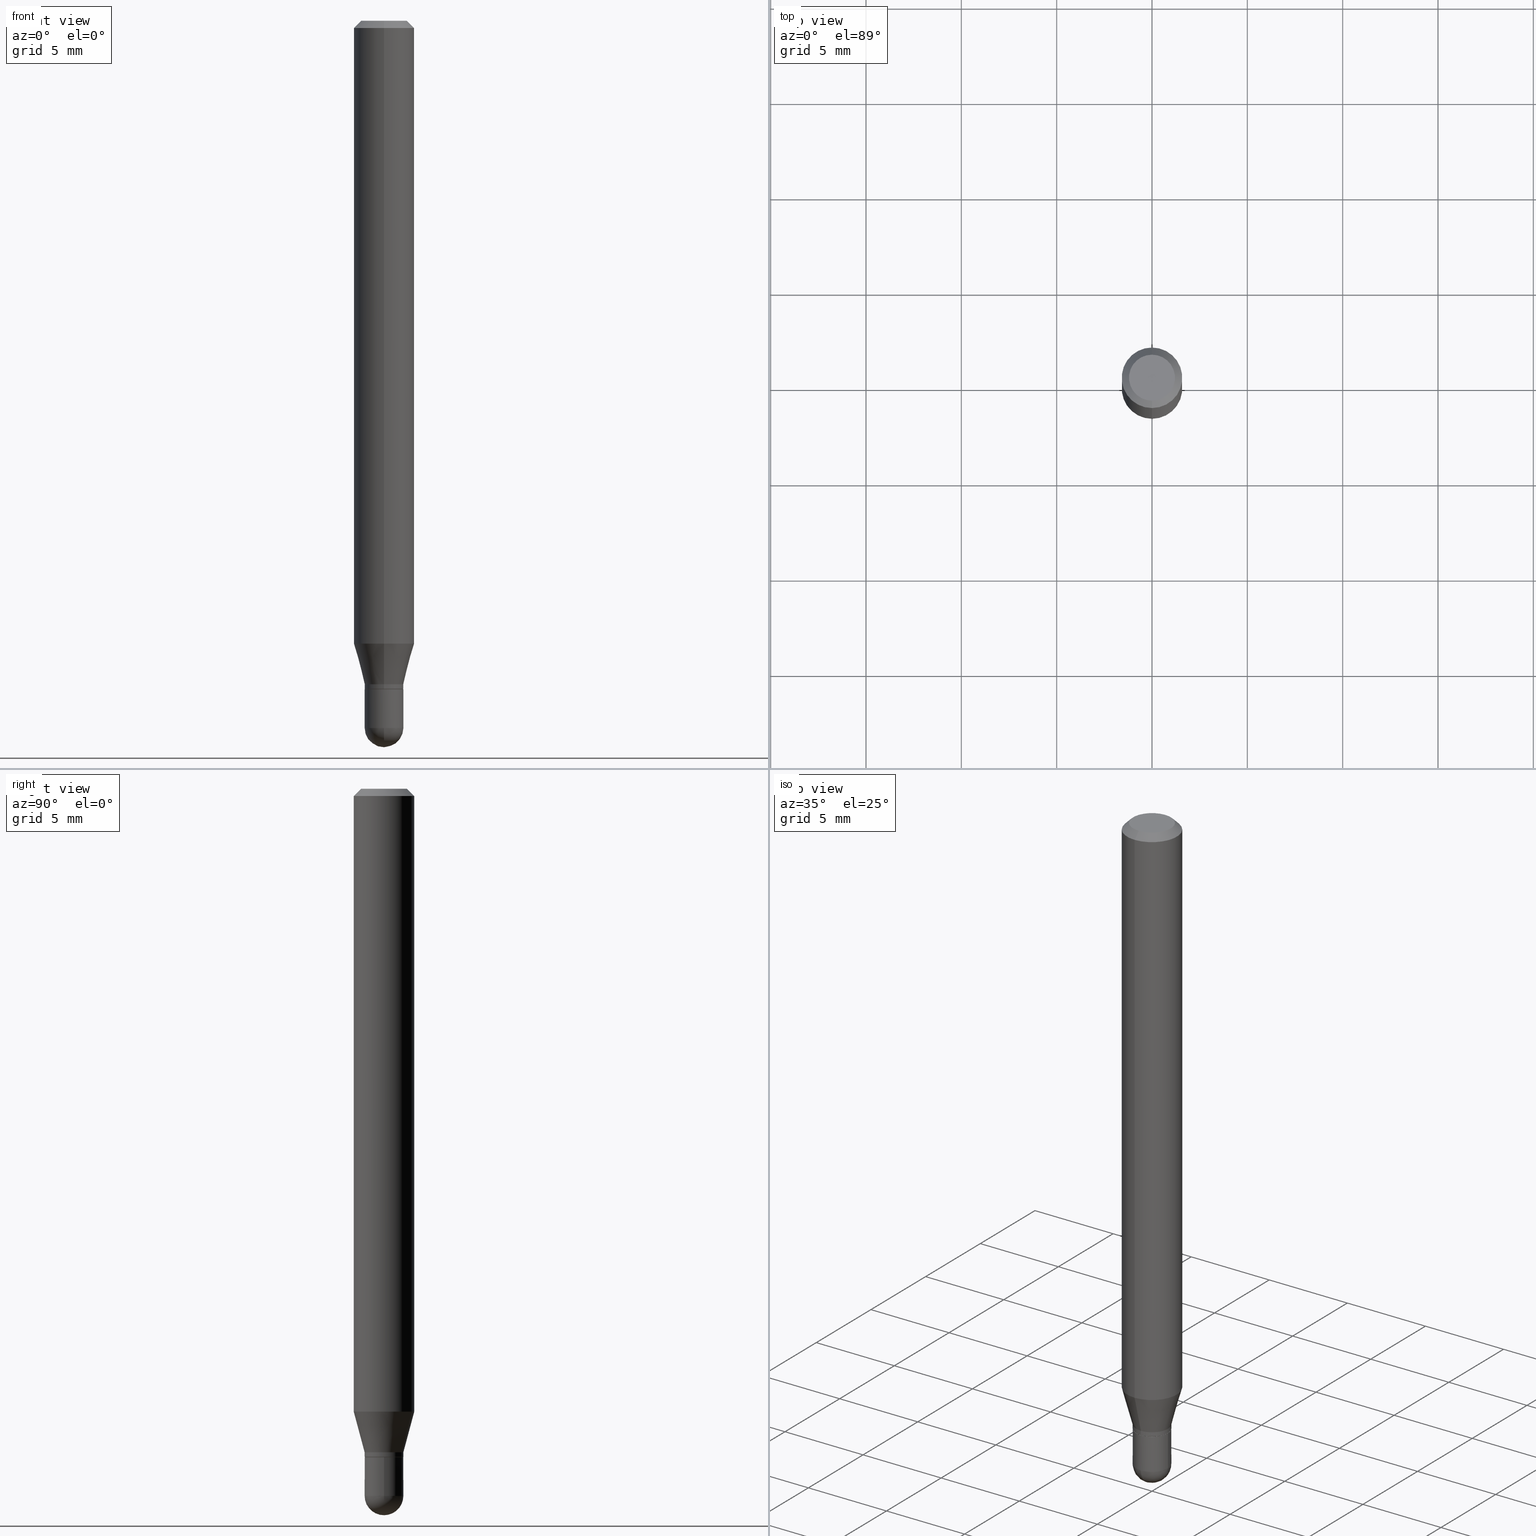
[diagram: canonical four-view strip — front | top / right | iso, engineering-drawing reading convention]
A machine part, canonical four-view strip (front | top / right | iso — engineering-drawing reading convention). The complete STEP part file that produces these views, byte-faithful:
ISO-10303-21;
HEADER;
FILE_DESCRIPTION (( 'STEP AP203' ),
    '1' );
FILE_NAME ('00729.STEP',
    '2024-03-07T18:08:34',
    ( '' ),
    ( '' ),
    'SwSTEP 2.0',
    'SolidWorks 2023',
    '' );
FILE_SCHEMA (( 'CONFIG_CONTROL_DESIGN' ));
ENDSEC;

DATA;
#1 = AXIS2_PLACEMENT_3D ( 'NONE', #119, #179, #297 ) ;
#2 = ORIENTED_EDGE ( 'NONE', *, *, #484, .F. ) ;
#3 = DIRECTION ( 'NONE',  ( -6.982962677686265133E-15, -1.000000000000000000, 6.829619984160670865E-15 ) ) ;
#4 = DIRECTION ( 'NONE',  ( 1.000000000000000000, -6.982962677686259611E-15, 0.000000000000000000 ) ) ;
#5 = DIRECTION ( 'NONE',  ( -2.445456004173908568E-29, 3.491499672051869513E-15, 1.000000000000000000 ) ) ;
#6 = CARTESIAN_POINT ( 'NONE',  ( 0.000000000000000000, 0.000000000000000000, 0.000000000000000000 ) ) ;
#7 =( CONVERSION_BASED_UNIT ( 'INCH', #324 ) LENGTH_UNIT ( ) NAMED_UNIT ( #157 ) );
#8 = LINE ( 'NONE', #161, #512 ) ;
#9 = AXIS2_PLACEMENT_3D ( 'NONE', #274, #32, #296 ) ;
#10 = AXIS2_PLACEMENT_3D ( 'NONE', #251, #130, #11 ) ;
#11 = DIRECTION ( 'NONE',  ( 6.982962677686265922E-15, 1.000000000000000000, -3.483106191921935554E-15 ) ) ;
#12 = CALENDAR_DATE ( 2024, 7, 3 ) ;
#13 = EDGE_CURVE ( 'NONE', #406, #452, #311, .T. ) ;
#14 = DATE_AND_TIME ( #12, #421 ) ;
#15 = CARTESIAN_POINT ( 'NONE',  ( 3.570384457030299835E-29, -5.097562754710993947E-15, -1.460000000000000187 ) ) ;
#16 = ORIENTED_EDGE ( 'NONE', *, *, #484, .T. ) ;
#17 = EDGE_CURVE ( 'NONE', #503, #199, #256, .T. ) ;
#18 = UNCERTAINTY_MEASURE_WITH_UNIT (LENGTH_MEASURE( 1.000000000000000082E-05 ), #7, 'distance_accuracy_value', 'NONE');
#19 = VECTOR ( 'NONE', #238, 39.37007874015748143 ) ;
#20 = DATE_AND_TIME ( #299, #509 ) ;
#21 = CC_DESIGN_APPROVAL ( #241, ( #232 ) ) ;
#22 = DIRECTION ( 'NONE',  ( -6.982962677686265133E-15, -1.000000000000000000, 6.829619984160670865E-15 ) ) ;
#23 = ORIENTED_EDGE ( 'NONE', *, *, #472, .F. ) ;
#24 = CIRCLE ( 'NONE', #314, 0.03999999999999992450 ) ;
#25 = ORIENTED_EDGE ( 'NONE', *, *, #350, .T. ) ;
#26 = VERTEX_POINT ( 'NONE', #384 ) ;
#27 = CYLINDRICAL_SURFACE ( 'NONE', #252, 0.06250000000000000000 ) ;
#28 = VERTEX_POINT ( 'NONE', #181 ) ;
#29 = EDGE_CURVE ( 'NONE', #101, #458, #338, .T. ) ;
#30 = EDGE_LOOP ( 'NONE', ( #463, #151, #222, #80 ) ) ;
#31 = DIRECTION ( 'NONE',  ( -6.982962677686265922E-15, -1.000000000000000000, 3.491499672051869513E-15 ) ) ;
#32 = DIRECTION ( 'NONE',  ( -1.000000000000000000, 7.105427357601001070E-15, -4.926315508542082329E-29 ) ) ;
#33 = DIRECTION ( 'NONE',  ( -1.000000000000000000, 6.982962677686265922E-15, -4.883557194083112340E-29 ) ) ;
#34 = EDGE_CURVE ( 'NONE', #26, #310, #455, .T. ) ;
#35 = CARTESIAN_POINT ( 'NONE',  ( 2.842170943040729659E-16, 0.03999999999999514361, -1.370000000000000329 ) ) ;
#36 = CARTESIAN_POINT ( 'NONE',  ( 3.144926989475098704E-29, -4.490169331870139407E-15, -1.286028856829700473 ) ) ;
#37 = AXIS2_PLACEMENT_3D ( 'NONE', #468, #218, #378 ) ;
#38 = DIRECTION ( 'NONE',  ( -4.937700262164674260E-15, -0.7071067811865632269, 0.7071067811865319186 ) ) ;
#39 = CARTESIAN_POINT ( 'NONE',  ( 2.793185071074865715E-16, 0.03999999999999492850, -1.460000000000000631 ) ) ;
#40 = CC_DESIGN_APPROVAL ( #257, ( #315 ) ) ;
#41 = CARTESIAN_POINT ( 'NONE',  ( 3.373506557757906896E-29, -4.816523797595554845E-15, -1.379500000000000171 ) ) ;
#42 = DIRECTION ( 'NONE',  ( -2.445468806185136597E-29, 3.491481338843145583E-15, 1.000000000000000000 ) ) ;
#43 = CARTESIAN_POINT ( 'NONE',  ( 3.350274725718254413E-29, -4.783354550711061750E-15, -1.370000000000000107 ) ) ;
#44 = LINE ( 'NONE', #168, #153 ) ;
#45 = DIRECTION ( 'NONE',  ( 6.982962677686265922E-15, 1.000000000000000000, -3.483106191921935554E-15 ) ) ;
#46 = DIRECTION ( 'NONE',  ( -6.982962677686265133E-15, -1.000000000000000000, 6.916070870036109544E-15 ) ) ;
#47 = AXIS2_PLACEMENT_3D ( 'NONE', #36, #226, #504 ) ;
#48 = LOCAL_TIME ( 13, 8, 34.00000000000000000, #307 ) ;
#49 = PERSON_AND_ORGANIZATION ( #393, #358 ) ;
#50 = DIRECTION ( 'NONE',  ( -2.445468806185136597E-29, 3.491481338843145583E-15, 1.000000000000000000 ) ) ;
#51 = DESIGN_CONTEXT ( 'detailed design', #56, 'design' ) ;
#52 = EDGE_LOOP ( 'NONE', ( #268, #511, #457, #261, #438 ) ) ;
#53 = CARTESIAN_POINT ( 'NONE',  ( 0.000000000000000000, 0.000000000000000000, 0.000000000000000000 ) ) ;
#54 = CARTESIAN_POINT ( 'NONE',  ( -3.773273898774340269E-16, -0.04749999999999999362, 1.569867856580470595E-16 ) ) ;
#55 = PERSON_AND_ORGANIZATION ( #393, #358 ) ;
#56 = APPLICATION_CONTEXT ( 'configuration controlled 3d designs of mechanical parts and assemblies' ) ;
#57 = CIRCLE ( 'NONE', #177, 0.06250000000000000000 ) ;
#58 = DATE_TIME_ROLE ( 'classification_date' ) ;
#59 = CC_DESIGN_DATE_AND_TIME_ASSIGNMENT ( #14, #483, ( #66 ) ) ;
#60 = ORIENTED_EDGE ( 'NONE', *, *, #74, .T. ) ;
#61 = CARTESIAN_POINT ( 'NONE',  ( 3.566963791873582281E-29, -5.102461341907582659E-15, -1.459999999999999964 ) ) ;
#62 = PRODUCT ( '00729', '00729', '', ( #172 ) ) ;
#63 = PERSON_AND_ORGANIZATION_ROLE ( 'classification_officer' ) ;
#64 = DIRECTION ( 'NONE',  ( -2.445456004173908568E-29, 3.491499672051869513E-15, 1.000000000000000000 ) ) ;
#65 = ADVANCED_FACE ( 'NONE', ( #495 ), #27, .T. ) ;
#66 = PRODUCT_DEFINITION ( 'UNKNOWN', '', #315, #51 ) ;
#67 = AXIS2_PLACEMENT_3D ( 'NONE', #471, #118, #395 ) ;
#68 = COORDINATED_UNIVERSAL_TIME_OFFSET ( 5, 0, .BEHIND. ) ;
#69 = ADVANCED_FACE ( 'NONE', ( #420 ), #388, .F. ) ;
#70 = ORIENTED_EDGE ( 'NONE', *, *, #362, .T. ) ;
#71 = ORIENTED_EDGE ( 'NONE', *, *, #74, .F. ) ;
#72 = VERTEX_POINT ( 'NONE', #195 ) ;
#73 = AXIS2_PLACEMENT_3D ( 'NONE', #448, #88, #121 ) ;
#74 = EDGE_CURVE ( 'NONE', #199, #180, #391, .T. ) ;
#75 = CARTESIAN_POINT ( 'NONE',  ( 3.840629472727447874E-16, 0.04749999999999999362, -1.747056831868805136E-16 ) ) ;
#76 = DIRECTION ( 'NONE',  ( 1.000000000000000000, -6.982962677686259611E-15, 0.000000000000000000 ) ) ;
#77 = DIRECTION ( 'NONE',  ( 4.937700262164548042E-15, 0.7071067811865451302, -0.7071067811865499042 ) ) ;
#78 = DIRECTION ( 'NONE',  ( 6.982962677686265922E-15, 1.000000000000000000, -6.829619984160646410E-15 ) ) ;
#79 = EDGE_CURVE ( 'NONE', #459, #101, #499, .T. ) ;
#80 = ORIENTED_EDGE ( 'NONE', *, *, #255, .F. ) ;
#81 = ORIENTED_EDGE ( 'NONE', *, *, #490, .T. ) ;
#82 = APPROVAL_ROLE ( '' ) ;
#83 = AXIS2_PLACEMENT_3D ( 'NONE', #486, #134, #247 ) ;
#84 = CARTESIAN_POINT ( 'NONE',  ( 4.440892098500625669E-16, 0.06250000000000000000, -2.182187295032418446E-16 ) ) ;
#85 = EDGE_LOOP ( 'NONE', ( #114, #443 ) ) ;
#86 = DIRECTION ( 'NONE',  ( -6.982962677686266711E-15, -1.000000000000000000, 3.491499672051869908E-15 ) ) ;
#87 = ORIENTED_EDGE ( 'NONE', *, *, #79, .F. ) ;
#88 = DIRECTION ( 'NONE',  ( -2.445456004173908568E-29, 3.491499672051869513E-15, 1.000000000000000000 ) ) ;
#89 = ORIENTED_EDGE ( 'NONE', *, *, #362, .F. ) ;
#90 = DIRECTION ( 'NONE',  ( -4.851104656540964275E-15, -0.7071067811865500152, -0.7071067811865450192 ) ) ;
#91 = DIRECTION ( 'NONE',  ( 1.000000000000000000, -6.982962677686259611E-15, 0.000000000000000000 ) ) ;
#92 = EDGE_LOOP ( 'NONE', ( #258, #416 ) ) ;
#93 = PERSON_AND_ORGANIZATION ( #393, #358 ) ;
#94 = CC_DESIGN_PERSON_AND_ORGANIZATION_ASSIGNMENT ( #335, #451, ( #315 ) ) ;
#95 = CYLINDRICAL_SURFACE ( 'NONE', #37, 0.06250000000000000000 ) ;
#96 = CLOSED_SHELL ( 'NONE', ( #155, #230, #387, #366, #312, #336, #65, #510, #480, #69, #398, #160 ) ) ;
#97 = AXIS2_PLACEMENT_3D ( 'NONE', #53, #244, #400 ) ;
#98 = ORIENTED_EDGE ( 'NONE', *, *, #178, .T. ) ;
#99 = APPROVAL_STATUS ( 'not_yet_approved' ) ;
#100 = DIRECTION ( 'NONE',  ( -2.445456004173908007E-29, 3.491499672051869513E-15, 1.000000000000000000 ) ) ;
#101 = VERTEX_POINT ( 'NONE', #354 ) ;
#102 = ORIENTED_EDGE ( 'NONE', *, *, #250, .T. ) ;
#103 = EDGE_CURVE ( 'NONE', #305, #101, #464, .T. ) ;
#104 = ORIENTED_EDGE ( 'NONE', *, *, #214, .T. ) ;
#105 = SECURITY_CLASSIFICATION_LEVEL ( 'unclassified' ) ;
#106 = EDGE_CURVE ( 'NONE', #461, #459, #147, .T. ) ;
#107 = CARTESIAN_POINT ( 'NONE',  ( 2.806643806252732507E-16, 0.03949999999999518480, -1.380000000000000338 ) ) ;
#108 = DIRECTION ( 'NONE',  ( 1.000000000000000000, -6.982962677686259611E-15, 0.000000000000000000 ) ) ;
#109 = ORIENTED_EDGE ( 'NONE', *, *, #450, .F. ) ;
#110 = DIRECTION ( 'NONE',  ( -2.445456004173908288E-29, 3.491499672051869513E-15, 1.000000000000000000 ) ) ;
#111 = CYLINDRICAL_SURFACE ( 'NONE', #313, 0.03999999999999992450 ) ;
#112 = EDGE_LOOP ( 'NONE', ( #346, #263, #500, #260 ) ) ;
#113 = CARTESIAN_POINT ( 'NONE',  ( 2.793185071074843528E-16, 0.03999999999999518524, -1.380000000000000338 ) ) ;
#114 = ORIENTED_EDGE ( 'NONE', *, *, #429, .T. ) ;
#115 = CARTESIAN_POINT ( 'NONE',  ( 3.666492876699346118E-29, -5.239671301863013321E-15, -1.500000000000000222 ) ) ;
#116 = CIRCLE ( 'NONE', #404, 0.03999999999999992450 ) ;
#117 = CIRCLE ( 'NONE', #442, 0.04749999999999999362 ) ;
#118 = DIRECTION ( 'NONE',  ( -2.445468806185136597E-29, 3.491481338843145583E-15, 1.000000000000000000 ) ) ;
#119 = CARTESIAN_POINT ( 'NONE',  ( 0.000000000000000000, 0.000000000000000000, 0.000000000000000000 ) ) ;
#120 = ADVANCED_FACE ( 'NONE', ( #422 ), #465, .F. ) ;
#121 = DIRECTION ( 'NONE',  ( -6.982962677686265133E-15, -1.000000000000000000, 6.829619984160670865E-15 ) ) ;
#122 = VECTOR ( 'NONE', #110, 39.37007874015748143 ) ;
#123 = AXIS2_PLACEMENT_3D ( 'NONE', #163, #319, #233 ) ;
#124 = CC_DESIGN_SECURITY_CLASSIFICATION ( #232, ( #315 ) ) ;
#125 = COORDINATED_UNIVERSAL_TIME_OFFSET ( 5, 0, .BEHIND. ) ;
#126 = CARTESIAN_POINT ( 'NONE',  ( -2.793185071074500866E-16, -0.03999999999999992450, 1.396599868820745172E-16 ) ) ;
#127 = CARTESIAN_POINT ( 'NONE',  ( -4.364351673553598685E-16, -0.06250000000000444089, -1.286028856829700251 ) ) ;
#128 = EDGE_CURVE ( 'NONE', #467, #28, #231, .T. ) ;
#129 = CARTESIAN_POINT ( 'NONE',  ( 2.166539217461399004E-46, -3.093276245552132395E-32, -8.859448764416720880E-18 ) ) ;
#130 = DIRECTION ( 'NONE',  ( 2.445456004173908568E-29, -3.491499672051869513E-15, -1.000000000000000000 ) ) ;
#131 = DIRECTION ( 'NONE',  ( 6.982962677686265922E-15, 1.000000000000000000, -3.491499672051869513E-15 ) ) ;
#132 = AXIS2_PLACEMENT_3D ( 'NONE', #143, #306, #386 ) ;
#133 = AXIS2_PLACEMENT_3D ( 'NONE', #302, #409, #4 ) ;
#134 = DIRECTION ( 'NONE',  ( -2.445456004173908568E-29, 3.491499672051869513E-15, 1.000000000000000000 ) ) ;
#135 = DIRECTION ( 'NONE',  ( 2.445456004173908007E-29, -3.491499672051869513E-15, -1.000000000000000000 ) ) ;
#136 = CYLINDRICAL_SURFACE ( 'NONE', #497, 0.04000000000000000083 ) ;
#137 = ORIENTED_EDGE ( 'NONE', *, *, #79, .T. ) ;
#138 = COORDINATED_UNIVERSAL_TIME_OFFSET ( 5, 0, .BEHIND. ) ;
#139 = DIRECTION ( 'NONE',  ( -6.982962677686265922E-15, -1.000000000000000000, 3.491499672051869513E-15 ) ) ;
#140 = CIRCLE ( 'NONE', #47, 0.06250000000000000000 ) ;
#141 = LOCAL_TIME ( 13, 8, 34.00000000000000000, #329 ) ;
#142 = CALENDAR_DATE ( 2024, 7, 3 ) ;
#143 = CARTESIAN_POINT ( 'NONE',  ( 3.350274725718254413E-29, -4.783354550711061750E-15, -1.370000000000000107 ) ) ;
#144 = APPROVAL_DATE_TIME ( #348, #257 ) ;
#145 = ORIENTED_EDGE ( 'NONE', *, *, #106, .T. ) ;
#146 = EDGE_CURVE ( 'NONE', #503, #458, #140, .T. ) ;
#147 = LINE ( 'NONE', #107, #201 ) ;
#148 = PERSON_AND_ORGANIZATION_ROLE ( 'design_supplier' ) ;
#149 = ORIENTED_EDGE ( 'NONE', *, *, #240, .F. ) ;
#150 = CIRCLE ( 'NONE', #185, 0.06250000000000000000 ) ;
#151 = ORIENTED_EDGE ( 'NONE', *, *, #200, .T. ) ;
#152 = CARTESIAN_POINT ( 'NONE',  ( 0.04000000000000000083, -5.097562754710991580E-15, -1.380000000000000115 ) ) ;
#153 = VECTOR ( 'NONE', #38, 39.37007874015748143 ) ;
#154 = APPROVAL_PERSON_ORGANIZATION ( #492, #241, #259 ) ;
#155 = ADVANCED_FACE ( 'NONE', ( #352 ), #111, .T. ) ;
#156 = DIRECTION ( 'NONE',  ( -2.445456004173908288E-29, 3.491499672051869513E-15, 1.000000000000000000 ) ) ;
#157 = DIMENSIONAL_EXPONENTS ( 1.000000000000000000, 0.000000000000000000, 0.000000000000000000, 0.000000000000000000, 0.000000000000000000, 0.000000000000000000, 0.000000000000000000 ) ;
#158 = CIRCLE ( 'NONE', #223, 0.04000000000000000083 ) ;
#159 = AXIS2_PLACEMENT_3D ( 'NONE', #401, #285, #320 ) ;
#160 = ADVANCED_FACE ( 'NONE', ( #431 ), #283, .T. ) ;
#161 = CARTESIAN_POINT ( 'NONE',  ( 4.364351673553919652E-16, 0.06249999999999995143, -0.01500000000000022669 ) ) ;
#162 = ADVANCED_FACE ( 'NONE', ( #237 ), #235, .T. ) ;
#163 = CARTESIAN_POINT ( 'NONE',  ( 3.374729285759993869E-29, -4.818269547431580299E-15, -1.380000000000000115 ) ) ;
#164 = CARTESIAN_POINT ( 'NONE',  ( 4.440892098500941706E-16, 0.06249999999999995143, -0.01500000000000022669 ) ) ;
#165 =( NAMED_UNIT ( * ) PLANE_ANGLE_UNIT ( ) SI_UNIT ( $, .RADIAN. ) );
#166 = DIRECTION ( 'NONE',  ( -2.445456004173908568E-29, 3.491499672051869513E-15, 1.000000000000000000 ) ) ;
#167 = DATE_AND_TIME ( #207, #141 ) ;
#168 = CARTESIAN_POINT ( 'NONE',  ( -2.758270257685737501E-16, -0.03950000000000481598, -1.379999999999999671 ) ) ;
#169 = AXIS2_PLACEMENT_3D ( 'NONE', #243, #405, #210 ) ;
#170 = FACE_OUTER_BOUND ( 'NONE', #493, .T. ) ;
#171 = PERSON_AND_ORGANIZATION_ROLE ( 'creator' ) ;
#172 = MECHANICAL_CONTEXT ( 'NONE', #365, 'mechanical' ) ;
#173 = FACE_OUTER_BOUND ( 'NONE', #229, .T. ) ;
#174 = DIRECTION ( 'NONE',  ( -2.445468806185136597E-29, 3.491481338843145583E-15, 1.000000000000000000 ) ) ;
#175 = FACE_OUTER_BOUND ( 'NONE', #356, .T. ) ;
#176 = VECTOR ( 'NONE', #156, 39.37007874015748143 ) ;
#177 = AXIS2_PLACEMENT_3D ( 'NONE', #476, #5, #435 ) ;
#178 = EDGE_CURVE ( 'NONE', #459, #334, #116, .T. ) ;
#179 = DIRECTION ( 'NONE',  ( -2.445468806185136597E-29, 3.491481338843145583E-15, 1.000000000000000000 ) ) ;
#180 = VERTEX_POINT ( 'NONE', #164 ) ;
#181 = CARTESIAN_POINT ( 'NONE',  ( -2.842170943040045322E-16, -0.04000000000000514255, -1.459999999999999964 ) ) ;
#182 = EDGE_LOOP ( 'NONE', ( #87, #98, #102, #436 ) ) ;
#183 = ORIENTED_EDGE ( 'NONE', *, *, #292, .T. ) ;
#184 = DIRECTION ( 'NONE',  ( -2.445468806185136877E-29, 3.491481338843145188E-15, 1.000000000000000000 ) ) ;
#185 = AXIS2_PLACEMENT_3D ( 'NONE', #281, #432, #399 ) ;
#186 = CIRCLE ( 'NONE', #159, 0.04000000000000000083 ) ;
#187 = ORIENTED_EDGE ( 'NONE', *, *, #34, .F. ) ;
#188 = DATE_AND_TIME ( #142, #48 ) ;
#189 = ORIENTED_EDGE ( 'NONE', *, *, #429, .F. ) ;
#190 = CARTESIAN_POINT ( 'NONE',  ( 0.000000000000000000, 0.000000000000000000, 0.000000000000000000 ) ) ;
#191 = ORIENTED_EDGE ( 'NONE', *, *, #446, .T. ) ;
#192 = APPROVAL_STATUS ( 'not_yet_approved' ) ;
#193 = CARTESIAN_POINT ( 'NONE',  ( 3.350274725718254413E-29, -4.783354550711061750E-15, -1.370000000000000107 ) ) ;
#194 = ORIENTED_EDGE ( 'NONE', *, *, #128, .F. ) ;
#195 = CARTESIAN_POINT ( 'NONE',  ( -2.758270257685737501E-16, -0.03950000000000481598, -1.379999999999999671 ) ) ;
#196 = CARTESIAN_POINT ( 'NONE',  ( 2.842170943040741492E-16, 0.03999999999999524769, -1.379500000000000393 ) ) ;
#197 = VECTOR ( 'NONE', #498, 39.37007874015748143 ) ;
#198 = APPROVAL_PERSON_ORGANIZATION ( #489, #278, #82 ) ;
#199 = VERTEX_POINT ( 'NONE', #474 ) ;
#200 = EDGE_CURVE ( 'NONE', #458, #503, #150, .T. ) ;
#201 = VECTOR ( 'NONE', #267, 39.37007874015748143 ) ;
#202 = AXIS2_PLACEMENT_3D ( 'NONE', #444, #434, #475 ) ;
#203 = DIRECTION ( 'NONE',  ( -2.445456004173908568E-29, 3.491499672051869513E-15, 1.000000000000000000 ) ) ;
#204 = DIRECTION ( 'NONE',  ( -2.445456004173908568E-29, 3.491499672051869513E-15, 1.000000000000000000 ) ) ;
#205 = DIRECTION ( 'NONE',  ( 2.445456004173908568E-29, -3.491499672051869513E-15, -1.000000000000000000 ) ) ;
#206 = ORIENTED_EDGE ( 'NONE', *, *, #106, .F. ) ;
#207 = CALENDAR_DATE ( 2024, 7, 3 ) ;
#208 = LOCAL_TIME ( 13, 8, 34.00000000000000000, #138 ) ;
#209 = ORIENTED_EDGE ( 'NONE', *, *, #234, .F. ) ;
#210 = DIRECTION ( 'NONE',  ( -6.982962677686265133E-15, -1.000000000000000000, 6.916070870036109544E-15 ) ) ;
#211 = CARTESIAN_POINT ( 'NONE',  ( 3.316907271900976096E-16, 0.04749999999999999362, -1.702759588046721440E-16 ) ) ;
#212 = DIRECTION ( 'NONE',  ( -2.445456004173908568E-29, 3.491499672051869513E-15, 1.000000000000000000 ) ) ;
#213 = CARTESIAN_POINT ( 'NONE',  ( 0.000000000000000000, 0.000000000000000000, 0.000000000000000000 ) ) ;
#214 = EDGE_CURVE ( 'NONE', #101, #305, #24, .T. ) ;
#215 = VECTOR ( 'NONE', #90, 39.37007874015748143 ) ;
#216 = CIRCLE ( 'NONE', #202, 0.04000000000000007022 ) ;
#217 = CARTESIAN_POINT ( 'NONE',  ( -2.793185071074153768E-16, -0.04000000000000460132, -1.379499999999999948 ) ) ;
#218 = DIRECTION ( 'NONE',  ( -2.445456004173908568E-29, 3.491499672051869513E-15, 1.000000000000000000 ) ) ;
#219 = ORIENTED_EDGE ( 'NONE', *, *, #298, .F. ) ;
#220 = DIRECTION ( 'NONE',  ( -2.445456004173908568E-29, 3.491499672051869513E-15, 1.000000000000000000 ) ) ;
#221 = ORIENTED_EDGE ( 'NONE', *, *, #178, .F. ) ;
#222 = ORIENTED_EDGE ( 'NONE', *, *, #17, .T. ) ;
#223 = AXIS2_PLACEMENT_3D ( 'NONE', #15, #42, #76 ) ;
#224 = CIRCLE ( 'NONE', #83, 0.03950000000000000039 ) ;
#225 = ORIENTED_EDGE ( 'NONE', *, *, #490, .F. ) ;
#226 = DIRECTION ( 'NONE',  ( -2.445456004173908568E-29, 3.491499672051869513E-15, 1.000000000000000000 ) ) ;
#227 = CC_DESIGN_PERSON_AND_ORGANIZATION_ASSIGNMENT ( #344, #148, ( #315 ) ) ;
#228 = DIRECTION ( 'NONE',  ( 2.438088387897960049E-29, -3.491481338843145188E-15, -1.000000000000000000 ) ) ;
#229 = EDGE_LOOP ( 'NONE', ( #225, #339, #424, #425 ) ) ;
#230 = ADVANCED_FACE ( 'NONE', ( #279 ), #265, .T. ) ;
#231 = CIRCLE ( 'NONE', #9, 0.04000000000000007022 ) ;
#232 = SECURITY_CLASSIFICATION ( '', '', #105 ) ;
#233 = DIRECTION ( 'NONE',  ( -6.982962677686265133E-15, -1.000000000000000000, 6.916070870036109544E-15 ) ) ;
#234 = EDGE_CURVE ( 'NONE', #406, #411, #158, .T. ) ;
#235 = SPHERICAL_SURFACE ( 'NONE', #332, 0.04000000000000007022 ) ;
#236 = CIRCLE ( 'NONE', #433, 0.04749999999999999362 ) ;
#237 = FACE_OUTER_BOUND ( 'NONE', #287, .T. ) ;
#238 = DIRECTION ( 'NONE',  ( -1.807323732225330534E-15, -0.2588190451025182415, 0.9659258262890689783 ) ) ;
#239 = DIRECTION ( 'NONE',  ( -2.445456004173908288E-29, 3.491499672051869513E-15, 1.000000000000000000 ) ) ;
#240 = EDGE_CURVE ( 'NONE', #403, #180, #8, .T. ) ;
#241 = APPROVAL ( #99, 'UNSPECIFIED' ) ;
#242 =( NAMED_UNIT ( * ) SI_UNIT ( $, .STERADIAN. ) SOLID_ANGLE_UNIT ( ) );
#243 = CARTESIAN_POINT ( 'NONE',  ( 3.374729285759993869E-29, -4.818269547431580299E-15, -1.380000000000000115 ) ) ;
#244 = DIRECTION ( 'NONE',  ( 0.000000000000000000, 0.000000000000000000, 1.000000000000000000 ) ) ;
#245 = CIRCLE ( 'NONE', #508, 0.04000000000000000083 ) ;
#246 = EDGE_CURVE ( 'NONE', #28, #406, #290, .T. ) ;
#247 = DIRECTION ( 'NONE',  ( -6.982962677686265133E-15, -1.000000000000000000, 6.916070870036109544E-15 ) ) ;
#248 = ORIENTED_EDGE ( 'NONE', *, *, #246, .F. ) ;
#249 = PLANE ( 'NONE',  #266 ) ;
#250 = EDGE_CURVE ( 'NONE', #334, #305, #361, .T. ) ;
#251 = CARTESIAN_POINT ( 'NONE',  ( 3.668184006260864919E-31, -5.237249508077807031E-17, -0.01500000000000000812 ) ) ;
#252 = AXIS2_PLACEMENT_3D ( 'NONE', #190, #502, #139 ) ;
#253 = AXIS2_PLACEMENT_3D ( 'NONE', #419, #501, #108 ) ;
#254 = CARTESIAN_POINT ( 'NONE',  ( 2.166539217461399004E-46, -3.093276245552132395E-32, -8.859448764416720880E-18 ) ) ;
#255 = EDGE_CURVE ( 'NONE', #180, #199, #57, .T. ) ;
#256 = LINE ( 'NONE', #462, #122 ) ;
#257 = APPROVAL ( #192, 'UNSPECIFIED' ) ;
#258 = ORIENTED_EDGE ( 'NONE', *, *, #321, .T. ) ;
#259 = APPROVAL_ROLE ( '' ) ;
#260 = ORIENTED_EDGE ( 'NONE', *, *, #446, .F. ) ;
#261 = ORIENTED_EDGE ( 'NONE', *, *, #13, .F. ) ;
#262 = CARTESIAN_POINT ( 'NONE',  ( -0.04000000000000000083, -4.673686406853227813E-15, -1.380000000000000115 ) ) ;
#263 = ORIENTED_EDGE ( 'NONE', *, *, #29, .T. ) ;
#264 = CARTESIAN_POINT ( 'NONE',  ( -0.04000000000000000083, 2.842170943040400803E-16, -1.967574036101962509E-30 ) ) ;
#265 = CONICAL_SURFACE ( 'NONE', #441, 0.03950000000000000039, 0.7853981633974739252 ) ;
#266 = AXIS2_PLACEMENT_3D ( 'NONE', #211, #135, #131 ) ;
#267 = DIRECTION ( 'NONE',  ( 5.024295867788190974E-15, 0.7071067811865681119, 0.7071067811865270336 ) ) ;
#268 = ORIENTED_EDGE ( 'NONE', *, *, #271, .T. ) ;
#269 = DIRECTION ( 'NONE',  ( 1.839019923739600710E-15, 0.2588190451025250138, 0.9659258262890670910 ) ) ;
#270 = CARTESIAN_POINT ( 'NONE',  ( 0.000000000000000000, 0.000000000000000000, 0.000000000000000000 ) ) ;
#271 = EDGE_CURVE ( 'NONE', #411, #26, #186, .T. ) ;
#272 = ORIENTED_EDGE ( 'NONE', *, *, #13, .T. ) ;
#273 = VERTEX_POINT ( 'NONE', #54 ) ;
#274 = CARTESIAN_POINT ( 'NONE',  ( 3.566963791873582281E-29, -5.102461341907582659E-15, -1.459999999999999964 ) ) ;
#275 = ORIENTED_EDGE ( 'NONE', *, *, #255, .T. ) ;
#276 = AXIS2_PLACEMENT_3D ( 'NONE', #113, #228, #390 ) ;
#277 = CIRCLE ( 'NONE', #123, 0.03950000000000000039 ) ;
#278 = APPROVAL ( #439, 'UNSPECIFIED' ) ;
#279 = FACE_OUTER_BOUND ( 'NONE', #355, .T. ) ;
#280 = DIRECTION ( 'NONE',  ( -6.982962677686265133E-15, -1.000000000000000000, 3.491499672051869513E-15 ) ) ;
#281 = CARTESIAN_POINT ( 'NONE',  ( 3.144926989475098704E-29, -4.490169331870139407E-15, -1.286028856829700473 ) ) ;
#282 = CARTESIAN_POINT ( 'NONE',  ( -2.793185071074166094E-16, -0.04000000000000470540, -1.369999999999999885 ) ) ;
#283 = CYLINDRICAL_SURFACE ( 'NONE', #341, 0.03999999999999992450 ) ;
#284 = PERSON_AND_ORGANIZATION_ROLE ( 'design_owner' ) ;
#285 = DIRECTION ( 'NONE',  ( -2.445468806185136597E-29, 3.491481338843145583E-15, 1.000000000000000000 ) ) ;
#286 = PRODUCT_DEFINITION_SHAPE ( 'NONE', 'NONE',  #66 ) ;
#287 = EDGE_LOOP ( 'NONE', ( #194, #81, #209, #248 ) ) ;
#288 = LINE ( 'NONE', #84, #397 ) ;
#289 = ORIENTED_EDGE ( 'NONE', *, *, #250, .F. ) ;
#290 = CIRCLE ( 'NONE', #67, 0.04000000000000000083 ) ;
#291 = CONICAL_SURFACE ( 'NONE', #364, 0.06250000000000000000, 0.7853981633974483900 ) ;
#292 = EDGE_CURVE ( 'NONE', #26, #28, #245, .T. ) ;
#293 = FACE_OUTER_BOUND ( 'NONE', #469, .T. ) ;
#294 = DIRECTION ( 'NONE',  ( 1.000000000000000000, -6.982962677686265922E-15, 4.876176775795935793E-29 ) ) ;
#295 = ORIENTED_EDGE ( 'NONE', *, *, #413, .T. ) ;
#296 = DIRECTION ( 'NONE',  ( -7.105427357601000281E-15, -1.000000000000000000, 0.000000000000000000 ) ) ;
#297 = DIRECTION ( 'NONE',  ( 1.000000000000000000, -6.982962677686265922E-15, 4.876176775795935793E-29 ) ) ;
#298 = EDGE_CURVE ( 'NONE', #273, #403, #117, .T. ) ;
#299 = CALENDAR_DATE ( 2024, 7, 3 ) ;
#300 = CARTESIAN_POINT ( 'NONE',  ( 3.374729285759993869E-29, -4.818269547431580299E-15, -1.380000000000000115 ) ) ;
#301 = CIRCLE ( 'NONE', #133, 0.04000000000000000083 ) ;
#302 = CARTESIAN_POINT ( 'NONE',  ( 3.374746952535488593E-29, -4.818244247603541543E-15, -1.380000000000000115 ) ) ;
#303 = ORIENTED_EDGE ( 'NONE', *, *, #505, .T. ) ;
#304 = FACE_OUTER_BOUND ( 'NONE', #112, .T. ) ;
#305 = VERTEX_POINT ( 'NONE', #445 ) ;
#306 = DIRECTION ( 'NONE',  ( -2.445456004173908568E-29, 3.491499672051869513E-15, 1.000000000000000000 ) ) ;
#307 = COORDINATED_UNIVERSAL_TIME_OFFSET ( 5, 0, .BEHIND. ) ;
#308 = PRODUCT_RELATED_PRODUCT_CATEGORY ( 'detail', '', ( #62 ) ) ;
#309 = CALENDAR_DATE ( 2024, 7, 3 ) ;
#310 = VERTEX_POINT ( 'NONE', #262 ) ;
#311 = LINE ( 'NONE', #417, #197 ) ;
#312 = ADVANCED_FACE ( 'NONE', ( #304 ), #392, .T. ) ;
#313 = AXIS2_PLACEMENT_3D ( 'NONE', #270, #479, #322 ) ;
#314 = AXIS2_PLACEMENT_3D ( 'NONE', #43, #204, #363 ) ;
#315 = PRODUCT_DEFINITION_FORMATION_WITH_SPECIFIED_SOURCE ( 'ANY', '', #62, .NOT_KNOWN. ) ;
#316 = MANIFOLD_SOLID_BREP ( 'Body-Move/Copy2[1]', #487 ) ;
#317 = MANIFOLD_SOLID_BREP ( 'Body-Move/Copy2[2]', #96 ) ;
#318 = FACE_OUTER_BOUND ( 'NONE', #328, .T. ) ;
#319 = DIRECTION ( 'NONE',  ( -2.445456004173908568E-29, 3.491499672051869513E-15, 1.000000000000000000 ) ) ;
#320 = DIRECTION ( 'NONE',  ( 1.000000000000000000, -6.982962677686259611E-15, 0.000000000000000000 ) ) ;
#321 = EDGE_CURVE ( 'NONE', #452, #310, #377, .T. ) ;
#322 = DIRECTION ( 'NONE',  ( -6.982962677686265133E-15, -1.000000000000000000, 3.491499672051869513E-15 ) ) ;
#323 = AXIS2_PLACEMENT_3D ( 'NONE', #300, #100, #31 ) ;
#324 = LENGTH_MEASURE_WITH_UNIT ( LENGTH_MEASURE( 0.02539999999999999897 ), #437 );
#325 = EDGE_LOOP ( 'NONE', ( #89, #340 ) ) ;
#326 = ORIENTED_EDGE ( 'NONE', *, *, #246, .T. ) ;
#327 = FACE_OUTER_BOUND ( 'NONE', #440, .T. ) ;
#328 = EDGE_LOOP ( 'NONE', ( #187, #183, #326, #272, #23 ) ) ;
#329 = COORDINATED_UNIVERSAL_TIME_OFFSET ( 5, 0, .BEHIND. ) ;
#330 = DIRECTION ( 'NONE',  ( -2.445456004173908288E-29, 3.491499672051869513E-15, 1.000000000000000000 ) ) ;
#331 = PERSON_AND_ORGANIZATION ( #393, #358 ) ;
#332 = AXIS2_PLACEMENT_3D ( 'NONE', #396, #359, #78 ) ;
#333 = AXIS2_PLACEMENT_3D ( 'NONE', #193, #64, #454 ) ;
#334 = VERTEX_POINT ( 'NONE', #217 ) ;
#335 = PERSON_AND_ORGANIZATION ( #393, #358 ) ;
#336 = ADVANCED_FACE ( 'NONE', ( #349 ), #385, .T. ) ;
#337 = EDGE_LOOP ( 'NONE', ( #303, #137, #423, #289 ) ) ;
#338 = LINE ( 'NONE', #35, #477 ) ;
#339 = ORIENTED_EDGE ( 'NONE', *, *, #128, .T. ) ;
#340 = ORIENTED_EDGE ( 'NONE', *, *, #413, .F. ) ;
#341 = AXIS2_PLACEMENT_3D ( 'NONE', #6, #166, #280 ) ;
#342 = AXIS2_PLACEMENT_3D ( 'NONE', #61, #33, #374 ) ;
#343 = ORIENTED_EDGE ( 'NONE', *, *, #505, .F. ) ;
#344 = PERSON_AND_ORGANIZATION ( #393, #358 ) ;
#345 = ADVANCED_FACE ( 'NONE', ( #382 ), #136, .T. ) ;
#346 = ORIENTED_EDGE ( 'NONE', *, *, #103, .T. ) ;
#347 = ADVANCED_BREP_SHAPE_REPRESENTATION ( '00729', ( #316, #317, #97 ), #470 ) ;
#348 = DATE_AND_TIME ( #309, #208 ) ;
#349 = FACE_OUTER_BOUND ( 'NONE', #383, .T. ) ;
#350 = EDGE_CURVE ( 'NONE', #458, #180, #288, .T. ) ;
#351 = CARTESIAN_POINT ( 'NONE',  ( 3.668184006260864919E-31, -5.237249508077807031E-17, -0.01500000000000000812 ) ) ;
#352 = FACE_OUTER_BOUND ( 'NONE', #337, .T. ) ;
#353 = CONICAL_SURFACE ( 'NONE', #10, 0.06250000000000000000, 0.7853981633974483900 ) ;
#354 = CARTESIAN_POINT ( 'NONE',  ( 3.641531520770834203E-16, 0.03999999999999514361, -1.370000000000000329 ) ) ;
#355 = EDGE_LOOP ( 'NONE', ( #70, #145, #343, #109 ) ) ;
#356 = EDGE_LOOP ( 'NONE', ( #219, #16, #60, #149 ) ) ;
#357 = VECTOR ( 'NONE', #239, 39.37007874015748143 ) ;
#358 = ORGANIZATION ( 'UNSPECIFIED', 'UNSPECIFIED', '' ) ;
#359 = DIRECTION ( 'NONE',  ( -1.000000000000000000, 6.982962677686265922E-15, -4.883557194083112340E-29 ) ) ;
#360 = APPLICATION_PROTOCOL_DEFINITION ( 'international standard', 'config_control_design', 1994, #56 ) ;
#361 = LINE ( 'NONE', #126, #357 ) ;
#362 = EDGE_CURVE ( 'NONE', #72, #461, #224, .T. ) ;
#363 = DIRECTION ( 'NONE',  ( -6.982962677686265133E-15, -1.000000000000000000, 6.829619984160670865E-15 ) ) ;
#364 = AXIS2_PLACEMENT_3D ( 'NONE', #408, #205, #45 ) ;
#365 = APPLICATION_CONTEXT ( 'configuration controlled 3d designs of mechanical parts and assemblies' ) ;
#366 = ADVANCED_FACE ( 'NONE', ( #293 ), #95, .T. ) ;
#367 = CC_DESIGN_PERSON_AND_ORGANIZATION_ASSIGNMENT ( #331, #284, ( #62 ) ) ;
#368 = APPLICATION_PROTOCOL_DEFINITION ( 'international standard', 'config_control_design', 1994, #365 ) ;
#369 = DIRECTION ( 'NONE',  ( -2.445456004173908568E-29, 3.491499672051869513E-15, 1.000000000000000000 ) ) ;
#370 = DIRECTION ( 'NONE',  ( -6.982962677686266711E-15, -1.000000000000000000, 3.491499672051869908E-15 ) ) ;
#371 = ORIENTED_EDGE ( 'NONE', *, *, #146, .T. ) ;
#372 = LINE ( 'NONE', #282, #19 ) ;
#373 = FACE_OUTER_BOUND ( 'NONE', #85, .T. ) ;
#374 = DIRECTION ( 'NONE',  ( 6.982962677686265922E-15, 1.000000000000000000, -6.829619984160646410E-15 ) ) ;
#375 = ORIENTED_EDGE ( 'NONE', *, *, #17, .F. ) ;
#376 = AXIS2_PLACEMENT_3D ( 'NONE', #351, #415, #466 ) ;
#377 = CIRCLE ( 'NONE', #253, 0.04000000000000000083 ) ;
#378 = DIRECTION ( 'NONE',  ( -6.982962677686265922E-15, -1.000000000000000000, 3.491499672051869513E-15 ) ) ;
#379 = ORIENTED_EDGE ( 'NONE', *, *, #200, .F. ) ;
#380 = SHAPE_DEFINITION_REPRESENTATION ( #286, #347 ) ;
#381 = ADVANCED_FACE ( 'NONE', ( #173 ), #456, .T. ) ;
#382 = FACE_OUTER_BOUND ( 'NONE', #52, .T. ) ;
#383 = EDGE_LOOP ( 'NONE', ( #427, #104, #191, #379 ) ) ;
#384 = CARTESIAN_POINT ( 'NONE',  ( -0.04000000000000000083, -4.673686406853227813E-15, -1.460000000000000187 ) ) ;
#385 = CONICAL_SURFACE ( 'NONE', #478, 0.03999999999999992450, 0.2617993877991502960 ) ;
#386 = DIRECTION ( 'NONE',  ( -6.982962677686265133E-15, -1.000000000000000000, 6.829619984160670865E-15 ) ) ;
#387 = ADVANCED_FACE ( 'NONE', ( #175 ), #353, .T. ) ;
#388 = PLANE ( 'NONE',  #323 ) ;
#389 = CARTESIAN_POINT ( 'NONE',  ( 4.440892098500941706E-16, 0.06249999999999554523, -1.286028856829700695 ) ) ;
#390 = DIRECTION ( 'NONE',  ( -1.000000000000000000, 6.982962677686265922E-15, -4.876176775795935793E-29 ) ) ;
#391 = CIRCLE ( 'NONE', #376, 0.06250000000000000000 ) ;
#392 = CONICAL_SURFACE ( 'NONE', #333, 0.03999999999999992450, 0.2617993877991502960 ) ;
#393 = PERSON ( 'UNSPECIFIED', 'UNSPECIFIED', 'UNSPECIFIED', ('UNSPECIFIED'), ('UNSPECIFIED'), ('UNSPECIFIED') ) ;
#394 = CYLINDRICAL_SURFACE ( 'NONE', #1, 0.04000000000000000083 ) ;
#395 = DIRECTION ( 'NONE',  ( 1.000000000000000000, -6.982962677686259611E-15, 0.000000000000000000 ) ) ;
#396 = CARTESIAN_POINT ( 'NONE',  ( 3.566963791873582281E-29, -5.102461341907582659E-15, -1.459999999999999964 ) ) ;
#397 = VECTOR ( 'NONE', #330, 39.37007874015748143 ) ;
#398 = ADVANCED_FACE ( 'NONE', ( #170 ), #453, .T. ) ;
#399 = DIRECTION ( 'NONE',  ( -6.982962677686265922E-15, -1.000000000000000000, 4.370956789862821150E-15 ) ) ;
#400 = DIRECTION ( 'NONE',  ( 1.000000000000000000, 0.000000000000000000, 0.000000000000000000 ) ) ;
#401 = CARTESIAN_POINT ( 'NONE',  ( 3.570384457030299835E-29, -5.097562754710993947E-15, -1.460000000000000187 ) ) ;
#402 = LINE ( 'NONE', #482, #215 ) ;
#403 = VERTEX_POINT ( 'NONE', #75 ) ;
#404 = AXIS2_PLACEMENT_3D ( 'NONE', #41, #203, #3 ) ;
#405 = DIRECTION ( 'NONE',  ( -2.445456004173908568E-29, 3.491499672051869513E-15, 1.000000000000000000 ) ) ;
#406 = VERTEX_POINT ( 'NONE', #430 ) ;
#407 = APPROVAL_DATE_TIME ( #167, #278 ) ;
#408 = CARTESIAN_POINT ( 'NONE',  ( 3.668184006260864919E-31, -5.237249508077807031E-17, -0.01500000000000000812 ) ) ;
#409 = DIRECTION ( 'NONE',  ( -2.445468806185136597E-29, 3.491481338843145583E-15, 1.000000000000000000 ) ) ;
#410 = VECTOR ( 'NONE', #184, 39.37007874015748143 ) ;
#411 = VERTEX_POINT ( 'NONE', #39 ) ;
#412 = APPROVAL_DATE_TIME ( #188, #241 ) ;
#413 = EDGE_CURVE ( 'NONE', #461, #72, #277, .T. ) ;
#414 = DIRECTION ( 'NONE',  ( -2.445456004173908568E-29, 3.491499672051869513E-15, 1.000000000000000000 ) ) ;
#415 = DIRECTION ( 'NONE',  ( -2.445456004173908568E-29, 3.491499672051869513E-15, 1.000000000000000000 ) ) ;
#416 = ORIENTED_EDGE ( 'NONE', *, *, #472, .T. ) ;
#417 = CARTESIAN_POINT ( 'NONE',  ( 0.04000000000000000083, -2.793185071074506290E-16, 1.950470710318374387E-30 ) ) ;
#418 = CARTESIAN_POINT ( 'NONE',  ( 2.842170943040394886E-16, 0.03999999999999992450, -1.396599868820745172E-16 ) ) ;
#419 = CARTESIAN_POINT ( 'NONE',  ( 3.374746952535488593E-29, -4.818244247603541543E-15, -1.380000000000000115 ) ) ;
#420 = FACE_OUTER_BOUND ( 'NONE', #325, .T. ) ;
#421 = LOCAL_TIME ( 13, 8, 34.00000000000000000, #125 ) ;
#422 = FACE_OUTER_BOUND ( 'NONE', #92, .T. ) ;
#423 = ORIENTED_EDGE ( 'NONE', *, *, #103, .F. ) ;
#424 = ORIENTED_EDGE ( 'NONE', *, *, #292, .F. ) ;
#425 = ORIENTED_EDGE ( 'NONE', *, *, #271, .F. ) ;
#426 = ADVANCED_FACE ( 'NONE', ( #318 ), #394, .T. ) ;
#427 = ORIENTED_EDGE ( 'NONE', *, *, #29, .F. ) ;
#428 = CC_DESIGN_APPROVAL ( #278, ( #66 ) ) ;
#429 = EDGE_CURVE ( 'NONE', #403, #273, #236, .T. ) ;
#430 = CARTESIAN_POINT ( 'NONE',  ( 0.04000000000000000083, -5.237222008264718177E-15, -1.460000000000000187 ) ) ;
#431 = FACE_OUTER_BOUND ( 'NONE', #182, .T. ) ;
#432 = DIRECTION ( 'NONE',  ( -2.445456004173908568E-29, 3.491499672051869513E-15, 1.000000000000000000 ) ) ;
#433 = AXIS2_PLACEMENT_3D ( 'NONE', #254, #414, #86 ) ;
#434 = DIRECTION ( 'NONE',  ( 1.000000000000000000, -6.982962677686265922E-15, 4.883557194083112340E-29 ) ) ;
#435 = DIRECTION ( 'NONE',  ( -6.982962677686265922E-15, -1.000000000000000000, 3.483106191921935554E-15 ) ) ;
#436 = ORIENTED_EDGE ( 'NONE', *, *, #214, .F. ) ;
#437 =( LENGTH_UNIT ( ) NAMED_UNIT ( * ) SI_UNIT ( $, .METRE. ) );
#438 = ORIENTED_EDGE ( 'NONE', *, *, #234, .T. ) ;
#439 = APPROVAL_STATUS ( 'not_yet_approved' ) ;
#440 = EDGE_LOOP ( 'NONE', ( #2, #189, #473, #275 ) ) ;
#441 = AXIS2_PLACEMENT_3D ( 'NONE', #481, #369, #46 ) ;
#442 = AXIS2_PLACEMENT_3D ( 'NONE', #129, #212, #370 ) ;
#443 = ORIENTED_EDGE ( 'NONE', *, *, #298, .T. ) ;
#444 = CARTESIAN_POINT ( 'NONE',  ( 3.566963791873582281E-29, -5.102461341907582659E-15, -1.459999999999999964 ) ) ;
#445 = CARTESIAN_POINT ( 'NONE',  ( -2.793185071074166094E-16, -0.04000000000000470540, -1.369999999999999885 ) ) ;
#446 = EDGE_CURVE ( 'NONE', #305, #503, #372, .T. ) ;
#447 = CC_DESIGN_PERSON_AND_ORGANIZATION_ASSIGNMENT ( #49, #171, ( #66 ) ) ;
#448 = CARTESIAN_POINT ( 'NONE',  ( 3.373506557757906896E-29, -4.816523797595554845E-15, -1.379500000000000171 ) ) ;
#449 = CARTESIAN_POINT ( 'NONE',  ( 3.570384457030299835E-29, -5.097562754710993947E-15, -1.460000000000000187 ) ) ;
#450 = EDGE_CURVE ( 'NONE', #72, #334, #44, .T. ) ;
#451 = PERSON_AND_ORGANIZATION_ROLE ( 'creator' ) ;
#452 = VERTEX_POINT ( 'NONE', #152 ) ;
#453 = CONICAL_SURFACE ( 'NONE', #169, 0.03950000000000000039, 0.7853981633974739252 ) ;
#454 = DIRECTION ( 'NONE',  ( -6.982962677686265133E-15, -1.000000000000000000, 6.829619984160670865E-15 ) ) ;
#455 = LINE ( 'NONE', #264, #410 ) ;
#456 = SPHERICAL_SURFACE ( 'NONE', #342, 0.04000000000000007022 ) ;
#457 = ORIENTED_EDGE ( 'NONE', *, *, #321, .F. ) ;
#458 = VERTEX_POINT ( 'NONE', #389 ) ;
#459 = VERTEX_POINT ( 'NONE', #196 ) ;
#460 = CARTESIAN_POINT ( 'NONE',  ( 2.824407374646732069E-16, 0.03949999999999518480, -1.380000000000000338 ) ) ;
#461 = VERTEX_POINT ( 'NONE', #460 ) ;
#462 = CARTESIAN_POINT ( 'NONE',  ( -4.364351673553916201E-16, -0.06250000000000000000, 2.182187295032418446E-16 ) ) ;
#463 = ORIENTED_EDGE ( 'NONE', *, *, #350, .F. ) ;
#464 = CIRCLE ( 'NONE', #132, 0.03999999999999992450 ) ;
#465 = PLANE ( 'NONE',  #276 ) ;
#466 = DIRECTION ( 'NONE',  ( -6.982962677686265922E-15, -1.000000000000000000, 3.483106191921935554E-15 ) ) ;
#467 = VERTEX_POINT ( 'NONE', #115 ) ;
#468 = CARTESIAN_POINT ( 'NONE',  ( 0.000000000000000000, 0.000000000000000000, 0.000000000000000000 ) ) ;
#469 = EDGE_LOOP ( 'NONE', ( #371, #25, #71, #375 ) ) ;
#470 =( GEOMETRIC_REPRESENTATION_CONTEXT ( 3 ) GLOBAL_UNCERTAINTY_ASSIGNED_CONTEXT ( ( #18 ) ) GLOBAL_UNIT_ASSIGNED_CONTEXT ( ( #7, #165, #242 ) ) REPRESENTATION_CONTEXT ( 'NONE', 'WORKASPACE' ) );
#471 = CARTESIAN_POINT ( 'NONE',  ( 3.570384457030299835E-29, -5.097562754710993947E-15, -1.460000000000000187 ) ) ;
#472 = EDGE_CURVE ( 'NONE', #310, #452, #301, .T. ) ;
#473 = ORIENTED_EDGE ( 'NONE', *, *, #240, .T. ) ;
#474 = CARTESIAN_POINT ( 'NONE',  ( -4.364351673553912750E-16, -0.06250000000000005551, -0.01499999999999979128 ) ) ;
#475 = DIRECTION ( 'NONE',  ( 6.982962677686265922E-15, 1.000000000000000000, 0.000000000000000000 ) ) ;
#476 = CARTESIAN_POINT ( 'NONE',  ( 3.668184006260864919E-31, -5.237249508077807031E-17, -0.01500000000000000812 ) ) ;
#477 = VECTOR ( 'NONE', #269, 39.37007874015748143 ) ;
#478 = AXIS2_PLACEMENT_3D ( 'NONE', #494, #220, #22 ) ;
#479 = DIRECTION ( 'NONE',  ( -2.445456004173908568E-29, 3.491499672051869513E-15, 1.000000000000000000 ) ) ;
#480 = ADVANCED_FACE ( 'NONE', ( #373 ), #249, .F. ) ;
#481 = CARTESIAN_POINT ( 'NONE',  ( 3.374729285759993869E-29, -4.818269547431580299E-15, -1.380000000000000115 ) ) ;
#482 = CARTESIAN_POINT ( 'NONE',  ( -4.287811248607203282E-16, -0.06250000000000005551, -0.01499999999999979128 ) ) ;
#483 = DATE_TIME_ROLE ( 'creation_date' ) ;
#484 = EDGE_CURVE ( 'NONE', #273, #199, #402, .T. ) ;
#485 = CC_DESIGN_DATE_AND_TIME_ASSIGNMENT ( #20, #58, ( #232 ) ) ;
#486 = CARTESIAN_POINT ( 'NONE',  ( 3.374729285759993869E-29, -4.818269547431580299E-15, -1.380000000000000115 ) ) ;
#487 = CLOSED_SHELL ( 'NONE', ( #345, #381, #120, #162, #426 ) ) ;
#488 = APPROVAL_PERSON_ORGANIZATION ( #93, #257, #496 ) ;
#489 = PERSON_AND_ORGANIZATION ( #393, #358 ) ;
#490 = EDGE_CURVE ( 'NONE', #467, #411, #216, .T. ) ;
#491 = ORIENTED_EDGE ( 'NONE', *, *, #450, .T. ) ;
#492 = PERSON_AND_ORGANIZATION ( #393, #358 ) ;
#493 = EDGE_LOOP ( 'NONE', ( #206, #295, #491, #221 ) ) ;
#494 = CARTESIAN_POINT ( 'NONE',  ( 3.350274725718254413E-29, -4.783354550711061750E-15, -1.370000000000000107 ) ) ;
#495 = FACE_OUTER_BOUND ( 'NONE', #30, .T. ) ;
#496 = APPROVAL_ROLE ( '' ) ;
#497 = AXIS2_PLACEMENT_3D ( 'NONE', #213, #174, #294 ) ;
#498 = DIRECTION ( 'NONE',  ( -2.445468806185136877E-29, 3.491481338843145188E-15, 1.000000000000000000 ) ) ;
#499 = LINE ( 'NONE', #418, #176 ) ;
#500 = ORIENTED_EDGE ( 'NONE', *, *, #146, .F. ) ;
#501 = DIRECTION ( 'NONE',  ( -2.445468806185136597E-29, 3.491481338843145583E-15, 1.000000000000000000 ) ) ;
#502 = DIRECTION ( 'NONE',  ( -2.445456004173908568E-29, 3.491499672051869513E-15, 1.000000000000000000 ) ) ;
#503 = VERTEX_POINT ( 'NONE', #127 ) ;
#504 = DIRECTION ( 'NONE',  ( -6.982962677686265922E-15, -1.000000000000000000, 4.370956789862821150E-15 ) ) ;
#505 = EDGE_CURVE ( 'NONE', #334, #459, #507, .T. ) ;
#506 = CC_DESIGN_PERSON_AND_ORGANIZATION_ASSIGNMENT ( #55, #63, ( #232 ) ) ;
#507 = CIRCLE ( 'NONE', #73, 0.03999999999999992450 ) ;
#508 = AXIS2_PLACEMENT_3D ( 'NONE', #449, #50, #91 ) ;
#509 = LOCAL_TIME ( 13, 8, 34.00000000000000000, #68 ) ;
#510 = ADVANCED_FACE ( 'NONE', ( #327 ), #291, .T. ) ;
#511 = ORIENTED_EDGE ( 'NONE', *, *, #34, .T. ) ;
#512 = VECTOR ( 'NONE', #77, 39.37007874015748143 ) ;
ENDSEC;
END-ISO-10303-21;
